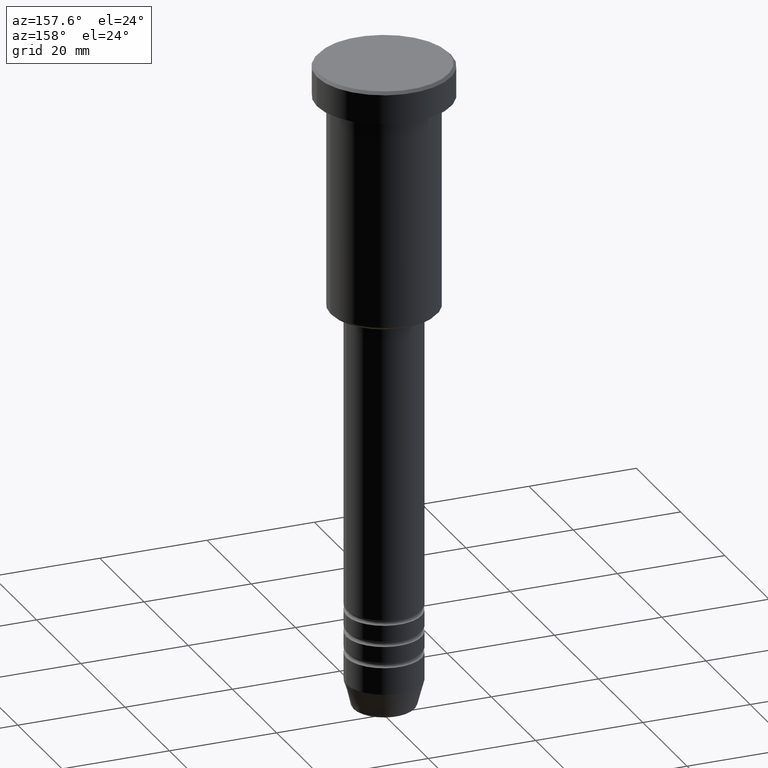
[diagram: clean part render]
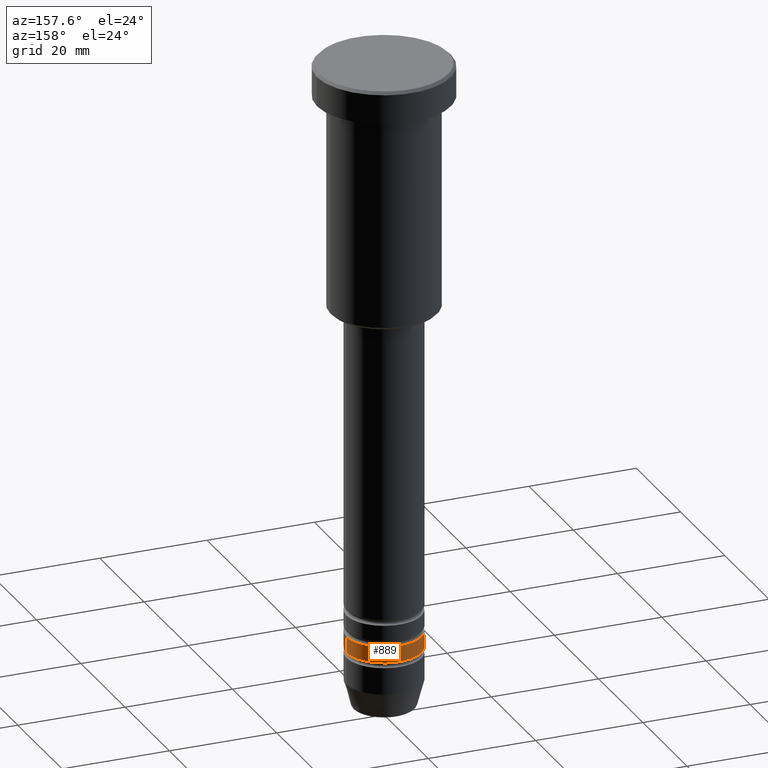
[diagram: same view with one face highlighted and labeled with its STEP entity id]
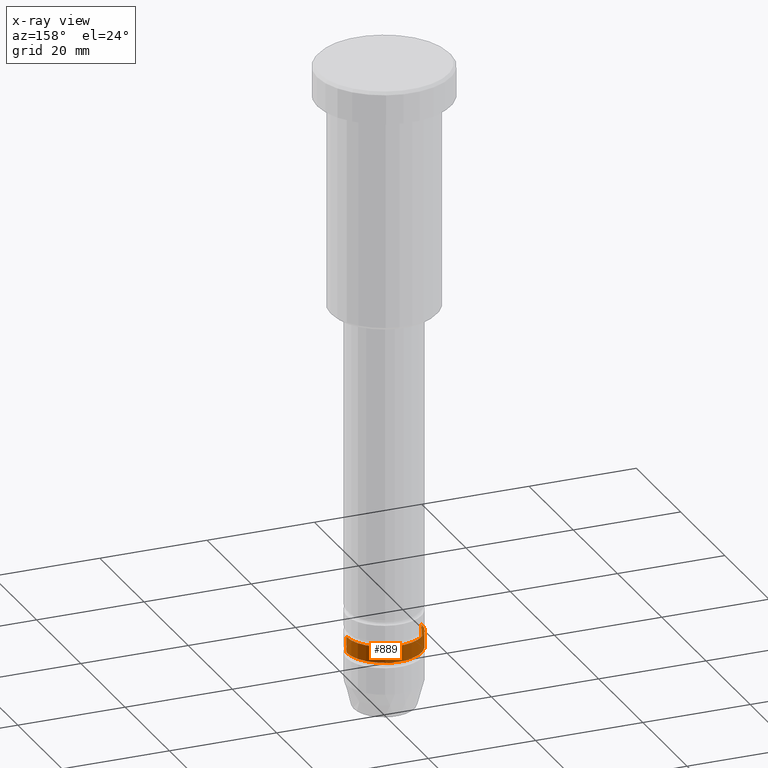
[diagram: x-ray of the same camera — body ghosted, the highlighted face saturated]
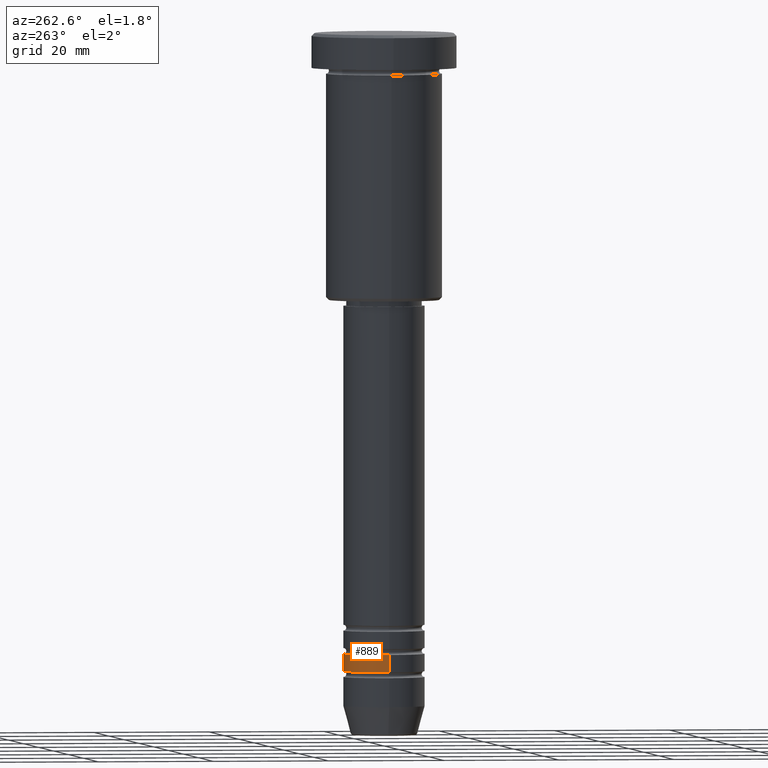
[diagram: same view with one face highlighted and labeled with its STEP entity id]
A machine part, auxiliary view. The second image highlights one B-rep face of the part: STEP entity #889.
The next image is the same camera in x-ray: the body ghosted, the highlighted face saturated — about 0% of this face is hidden behind the body in this view.
A second angle (auxiliary view) of the same face is appended — the face is thin or edge-on in the first view.
In plain terms, the highlighted cylindrical surface (partial cylindrical patch) has radius 7 mm, axis along (-0, -0, 1).
Its self-contained STEP definition (entity closure, byte-faithful):
#20 = CARTESIAN_POINT ( 'NONE',  ( 7.000000000000000888, 0.000000000000000000, 0.000000000000000000 ) ) ;
#69 = DIRECTION ( 'NONE',  ( -0.000000000000000000, -0.000000000000000000, 1.000000000000000000 ) ) ;
#113 = VERTEX_POINT ( 'NONE', #475 ) ;
#219 = DIRECTION ( 'NONE',  ( -0.000000000000000000, -0.000000000000000000, 1.000000000000000000 ) ) ;
#229 = EDGE_CURVE ( 'NONE', #639, #113, #1138, .T. ) ;
#250 = EDGE_CURVE ( 'NONE', #537, #639, #276, .T. ) ;
#256 = CARTESIAN_POINT ( 'NONE',  ( 7.000000000000000888, 0.000000000000000000, -109.9999999999998863 ) ) ;
#258 = VERTEX_POINT ( 'NONE', #664 ) ;
#276 = LINE ( 'NONE', #20, #544 ) ;
#324 = DIRECTION ( 'NONE',  ( -0.000000000000000000, -0.000000000000000000, 1.000000000000000000 ) ) ;
#349 = FACE_OUTER_BOUND ( 'NONE', #1000, .T. ) ;
#384 = EDGE_CURVE ( 'NONE', #537, #258, #788, .T. ) ;
#396 = AXIS2_PLACEMENT_3D ( 'NONE', #683, #324, #775 ) ;
#406 = CARTESIAN_POINT ( 'NONE',  ( -7.000000000000000888, 8.572527594031474176E-16, 0.000000000000000000 ) ) ;
#462 = EDGE_CURVE ( 'NONE', #258, #113, #1164, .T. ) ;
#467 = ORIENTED_EDGE ( 'NONE', *, *, #384, .T. ) ;
#475 = CARTESIAN_POINT ( 'NONE',  ( -7.000000000000000000, 8.572527594031473190E-16, -106.9999999999999005 ) ) ;
#481 = AXIS2_PLACEMENT_3D ( 'NONE', #1020, #740, #1127 ) ;
#537 = VERTEX_POINT ( 'NONE', #256 ) ;
#542 = ORIENTED_EDGE ( 'NONE', *, *, #229, .F. ) ;
#544 = VECTOR ( 'NONE', #936, 1000.000000000000000 ) ;
#639 = VERTEX_POINT ( 'NONE', #1026 ) ;
#642 = ORIENTED_EDGE ( 'NONE', *, *, #462, .T. ) ;
#664 = CARTESIAN_POINT ( 'NONE',  ( -7.000000000000000888, 8.572527594031474176E-16, -109.9999999999998863 ) ) ;
#683 = CARTESIAN_POINT ( 'NONE',  ( 0.000000000000000000, 0.000000000000000000, -109.9999999999998863 ) ) ;
#740 = DIRECTION ( 'NONE',  ( -0.000000000000000000, -0.000000000000000000, 1.000000000000000000 ) ) ;
#755 = ORIENTED_EDGE ( 'NONE', *, *, #250, .F. ) ;
#775 = DIRECTION ( 'NONE',  ( 1.000000000000000000, 0.000000000000000000, 0.000000000000000000 ) ) ;
#788 = CIRCLE ( 'NONE', #396, 7.000000000000000888 ) ;
#889 = ADVANCED_FACE ( 'NONE', ( #349 ), #983, .T. ) ;
#936 = DIRECTION ( 'NONE',  ( -0.000000000000000000, -0.000000000000000000, 1.000000000000000000 ) ) ;
#983 = CYLINDRICAL_SURFACE ( 'NONE', #1162, 7.000000000000000888 ) ;
#988 = DIRECTION ( 'NONE',  ( 1.000000000000000000, 0.000000000000000000, 0.000000000000000000 ) ) ;
#1000 = EDGE_LOOP ( 'NONE', ( #467, #642, #542, #755 ) ) ;
#1020 = CARTESIAN_POINT ( 'NONE',  ( 0.000000000000000000, 0.000000000000000000, -106.9999999999999005 ) ) ;
#1026 = CARTESIAN_POINT ( 'NONE',  ( 7.000000000000000000, 0.000000000000000000, -106.9999999999999005 ) ) ;
#1081 = VECTOR ( 'NONE', #219, 1000.000000000000000 ) ;
#1088 = CARTESIAN_POINT ( 'NONE',  ( 0.000000000000000000, 0.000000000000000000, 0.000000000000000000 ) ) ;
#1127 = DIRECTION ( 'NONE',  ( 1.000000000000000000, 0.000000000000000000, 0.000000000000000000 ) ) ;
#1138 = CIRCLE ( 'NONE', #481, 7.000000000000000000 ) ;
#1162 = AXIS2_PLACEMENT_3D ( 'NONE', #1088, #69, #988 ) ;
#1164 = LINE ( 'NONE', #406, #1081 ) ;